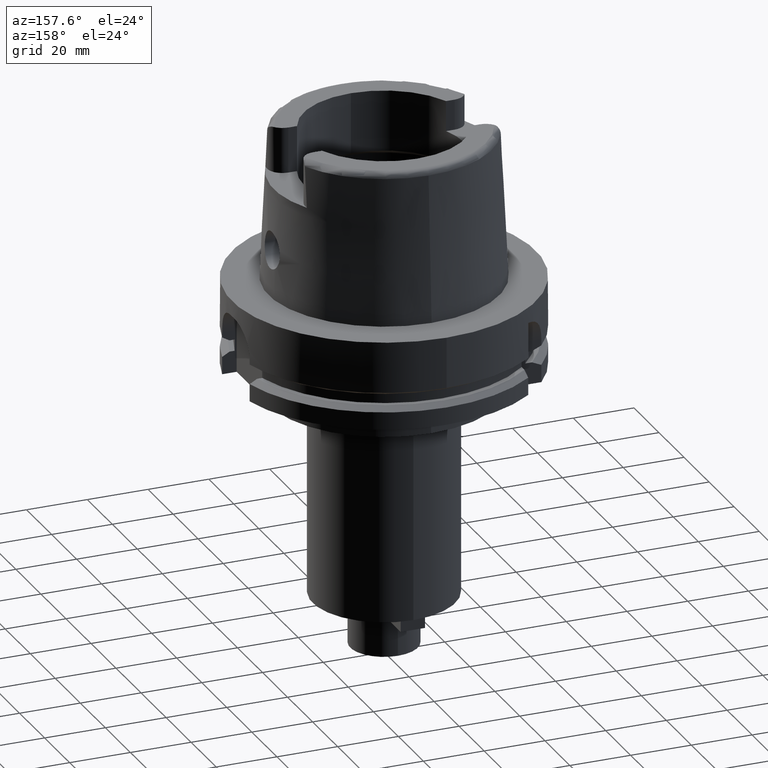
[diagram: clean part render]
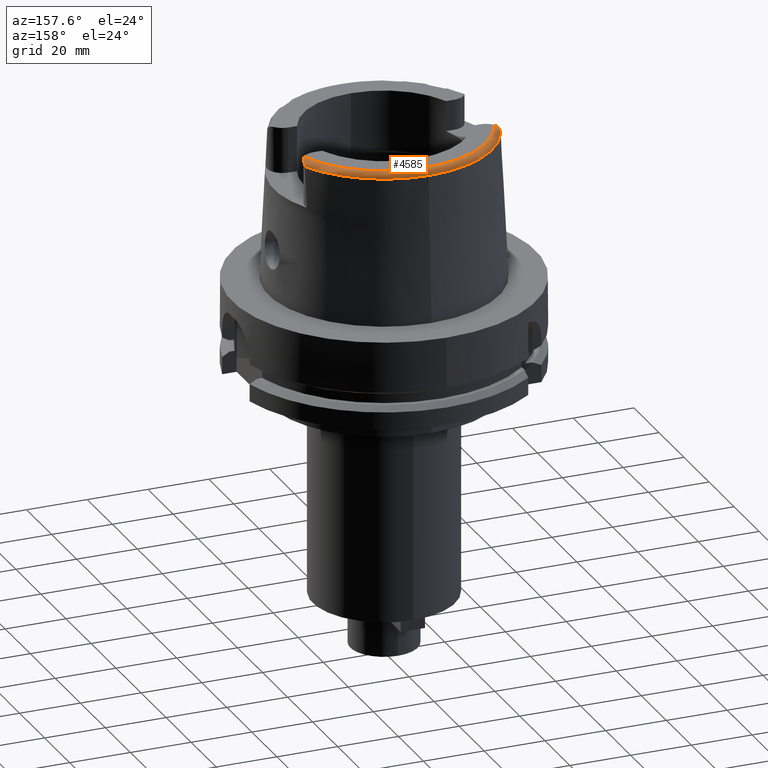
[diagram: same view with one face highlighted and labeled with its STEP entity id]
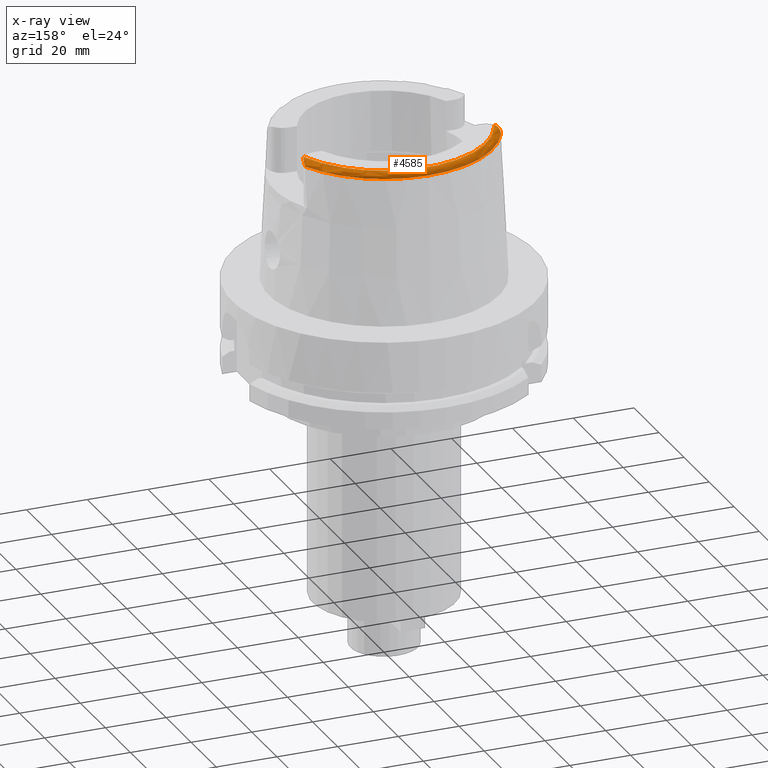
[diagram: x-ray of the same camera — body ghosted, the highlighted face saturated]
A machine part, auxiliary view. The second image highlights one B-rep face of the part: STEP entity #4585.
The next image is the same camera in x-ray: the body ghosted, the highlighted face saturated — about 0% of this face is hidden behind the body in this view.
In plain terms, the highlighted toroidal blend (fillet) surface has major radius 33.5974 mm and minor (blend) radius 2 mm.
Its self-contained STEP definition (entity closure, byte-faithful):
#26=CARTESIAN_POINT('',(0.E0,0.E0,5.E1));
#27=DIRECTION('',(0.E0,0.E0,-1.E0));
#28=DIRECTION('',(-9.332215253018E-1,3.593015233942E-1,0.E0));
#29=AXIS2_PLACEMENT_3D('',#26,#27,#28);
#2386=CARTESIAN_POINT('',(-3.135385269249E1,1.207161079257E1,5.E1));
#2387=CARTESIAN_POINT('',(-3.142433332271E1,1.217123665252E1,5.E1));
#2388=CARTESIAN_POINT('',(-3.156511948368E1,1.238544135211E1,4.998505988881E1));
#2389=CARTESIAN_POINT('',(-3.177331414037E1,1.277068991538E1,4.990343192563E1));
#2390=CARTESIAN_POINT('',(-3.194567423636E1,1.317533133817E1,4.976622380488E1));
#2391=CARTESIAN_POINT('',(-3.207456781971E1,1.357339566471E1,4.958689170914E1));
#2392=CARTESIAN_POINT('',(-3.215887356094E1,1.393086504130E1,4.938834246834E1));
#2393=CARTESIAN_POINT('',(-3.221021868025E1,1.424553386654E1,4.917959687642E1));
#2394=CARTESIAN_POINT('',(-3.223743628745E1,1.451274353946E1,4.896779855431E1));
#2395=CARTESIAN_POINT('',(-3.224875037698E1,1.473321862827E1,4.875350957746E1));
#2396=CARTESIAN_POINT('',(-3.225E1,1.484347783737E1,4.861471897375E1));
#2397=CARTESIAN_POINT('',(-3.225E1,1.489E1,4.854599893822E1));
#2402=CARTESIAN_POINT('',(-3.225E1,1.489E1,4.854599893822E1));
#2403=CARTESIAN_POINT('',(-3.225E1,1.492399371069E1,4.849578525781E1));
#2404=CARTESIAN_POINT('',(-3.225000018245E1,1.498170748934E1,4.839542761589E1));
#2405=CARTESIAN_POINT('',(-3.224999936141E1,1.503944173339E1,4.824417848584E1));
#2406=CARTESIAN_POINT('',(-3.225000136841E1,1.505881500954E1,4.814746433432E1));
#2407=CARTESIAN_POINT('',(-3.225000136841E1,1.506443227319E1,4.809991929678E1));
#2412=CARTESIAN_POINT('',(0.E0,0.E0,4.809987853799E1));
#2413=DIRECTION('',(0.E0,0.E0,-1.E0));
#2414=DIRECTION('',(-9.060276961631E-1,4.232183996300E-1,0.E0));
#2415=AXIS2_PLACEMENT_3D('',#2412,#2413,#2414);
#2420=CARTESIAN_POINT('',(0.E0,0.E0,4.809987853799E1));
#2421=DIRECTION('',(0.E0,0.E0,-1.E0));
#2422=DIRECTION('',(0.E0,1.E0,0.E0));
#2423=AXIS2_PLACEMENT_3D('',#2420,#2421,#2422);
#2428=CARTESIAN_POINT('',(3.224998031234E1,1.506460275820E1,4.809931542649E1));
#2429=CARTESIAN_POINT('',(3.224998031234E1,1.505857230666E1,4.815035772451E1));
#2430=CARTESIAN_POINT('',(3.225000918757E1,1.503779183650E1,4.824993106959E1));
#2431=CARTESIAN_POINT('',(3.224999737498E1,1.497914201930E1,4.840043389992E1));
#2432=CARTESIAN_POINT('',(3.225E1,1.492265483879E1,4.849776296734E1));
#2433=CARTESIAN_POINT('',(3.225E1,1.489E1,4.854599893822E1));
#2438=CARTESIAN_POINT('',(3.225E1,1.489E1,4.854599893822E1));
#2439=CARTESIAN_POINT('',(3.225E1,1.484292498045E1,4.861553562425E1));
#2440=CARTESIAN_POINT('',(3.224871012870E1,1.473165480452E1,4.875523979764E1));
#2441=CARTESIAN_POINT('',(3.223731317192E1,1.451131845322E1,4.896897704128E1));
#2442=CARTESIAN_POINT('',(3.221014349719E1,1.424513052336E1,4.917984389134E1));
#2443=CARTESIAN_POINT('',(3.215892972001E1,1.393117871391E1,4.938814569875E1));
#2444=CARTESIAN_POINT('',(3.207455944957E1,1.357324277390E1,4.958700870126E1));
#2445=CARTESIAN_POINT('',(3.194524573757E1,1.317418896150E1,4.976667360674E1));
#2446=CARTESIAN_POINT('',(3.177315178290E1,1.277039540725E1,4.990349180790E1));
#2447=CARTESIAN_POINT('',(3.156490765236E1,1.238508190807E1,4.998511473031E1));
#2448=CARTESIAN_POINT('',(3.142425234778E1,1.217112219275E1,5.E1));
#2449=CARTESIAN_POINT('',(3.135385269249E1,1.207161079257E1,5.E1));
#2455=CARTESIAN_POINT('',(-3.135385269249E1,1.207161079257E1,5.E1));
#2457=VERTEX_POINT('',#2455);
#2458=CARTESIAN_POINT('',(3.135385269249E1,1.207161079257E1,5.E1));
#2459=VERTEX_POINT('',#2458);
#2486=CARTESIAN_POINT('',(-3.225E1,1.489E1,4.854599893822E1));
#2487=VERTEX_POINT('',#2486);
#2505=VERTEX_POINT('',#2407);
#2506=CARTESIAN_POINT('',(0.E0,3.559494289391E1,4.809987853799E1));
#2507=VERTEX_POINT('',#2506);
#2508=CARTESIAN_POINT('',(3.224994093704E1,1.506456999646E1,4.809987853799E1));
#2509=VERTEX_POINT('',#2508);
#2510=VERTEX_POINT('',#2433);
#4569=CARTESIAN_POINT('',(0.E0,0.E0,4.8E1));
#4570=DIRECTION('',(0.E0,0.E0,1.E0));
#4571=DIRECTION('',(-4.184165975220E-4,-9.999999124638E-1,0.E0));
#4572=AXIS2_PLACEMENT_3D('',#4569,#4570,#4571);
#4573=TOROIDAL_SURFACE('',#4572,3.359743838136E1,2.E0);
#4574=ORIENTED_EDGE('',*,*,#2856,.T.);
#4576=ORIENTED_EDGE('',*,*,#4575,.T.);
#4577=ORIENTED_EDGE('',*,*,#3014,.T.);
#4578=ORIENTED_EDGE('',*,*,#3036,.T.);
#4580=ORIENTED_EDGE('',*,*,#4579,.T.);
#4581=ORIENTED_EDGE('',*,*,#4560,.T.);
#4582=ORIENTED_EDGE('',*,*,#2829,.F.);
#4583=EDGE_LOOP('',(#4574,#4576,#4577,#4578,#4580,#4581,#4582));
#4584=FACE_OUTER_BOUND('',#4583,.F.);
#30=CIRCLE('',#29,3.359743838136E1);
#2398=B_SPLINE_CURVE_WITH_KNOTS('',3,(#2386,#2387,#2388,#2389,#2390,#2391,#2392,
#2393,#2394,#2395,#2396,#2397),.UNSPECIFIED.,.F.,.F.,(4,1,1,1,1,1,1,1,1,4),
(0.E0,1.111111111111E-1,2.222222222222E-1,3.333333333333E-1,4.444444444444E-1,
5.555555555556E-1,6.666666666667E-1,7.777777777778E-1,8.888888888889E-1,1.E0),
.UNSPECIFIED.);
#2408=B_SPLINE_CURVE_WITH_KNOTS('',3,(#2402,#2403,#2404,#2405,#2406,#2407),
.UNSPECIFIED.,.F.,.F.,(4,1,1,4),(0.E0,3.333333333333E-1,6.666666666667E-1,1.E0),
.UNSPECIFIED.);
#2416=CIRCLE('',#2415,3.559494289391E1);
#2424=CIRCLE('',#2423,3.559494289391E1);
#2434=B_SPLINE_CURVE_WITH_KNOTS('',3,(#2428,#2429,#2430,#2431,#2432,#2433),
.UNSPECIFIED.,.F.,.F.,(4,1,1,4),(0.E0,3.333333333333E-1,6.666666666667E-1,1.E0),
.UNSPECIFIED.);
#2450=B_SPLINE_CURVE_WITH_KNOTS('',3,(#2438,#2439,#2440,#2441,#2442,#2443,#2444,
#2445,#2446,#2447,#2448,#2449),.UNSPECIFIED.,.F.,.F.,(4,1,1,1,1,1,1,1,1,4),
(0.E0,1.111111111111E-1,2.222222222222E-1,3.333333333333E-1,4.444444444444E-1,
5.555555555556E-1,6.666666666667E-1,7.777777777778E-1,8.888888888889E-1,1.E0),
.UNSPECIFIED.);
#2829=EDGE_CURVE('',#2457,#2459,#30,.T.);
#2856=EDGE_CURVE('',#2457,#2487,#2398,.T.);
#3014=EDGE_CURVE('',#2505,#2507,#2416,.T.);
#3036=EDGE_CURVE('',#2507,#2509,#2424,.T.);
#4560=EDGE_CURVE('',#2510,#2459,#2450,.T.);
#4575=EDGE_CURVE('',#2487,#2505,#2408,.T.);
#4579=EDGE_CURVE('',#2509,#2510,#2434,.T.);
#4585=ADVANCED_FACE('',(#4584),#4573,.T.);